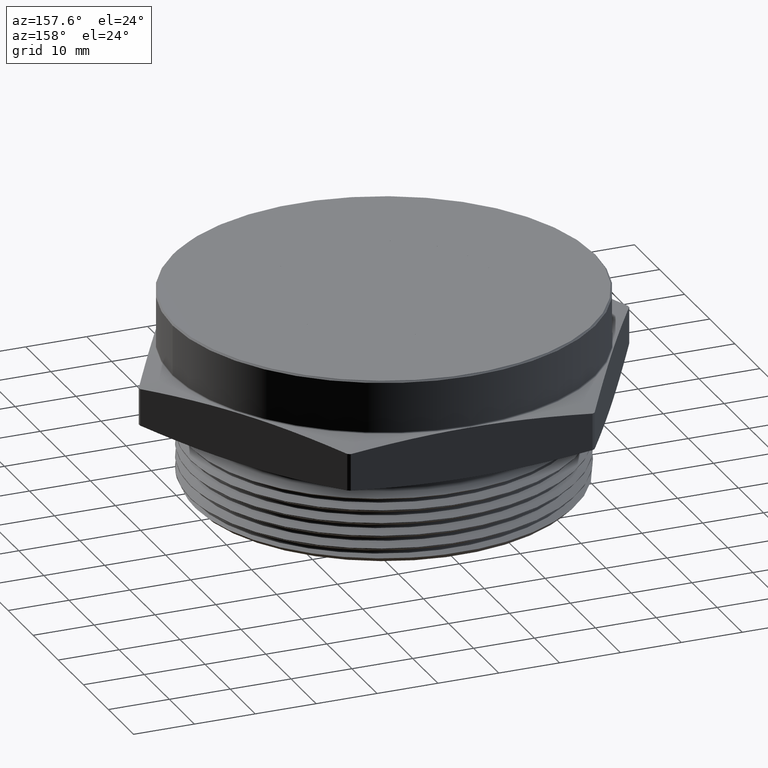
[diagram: clean part render]
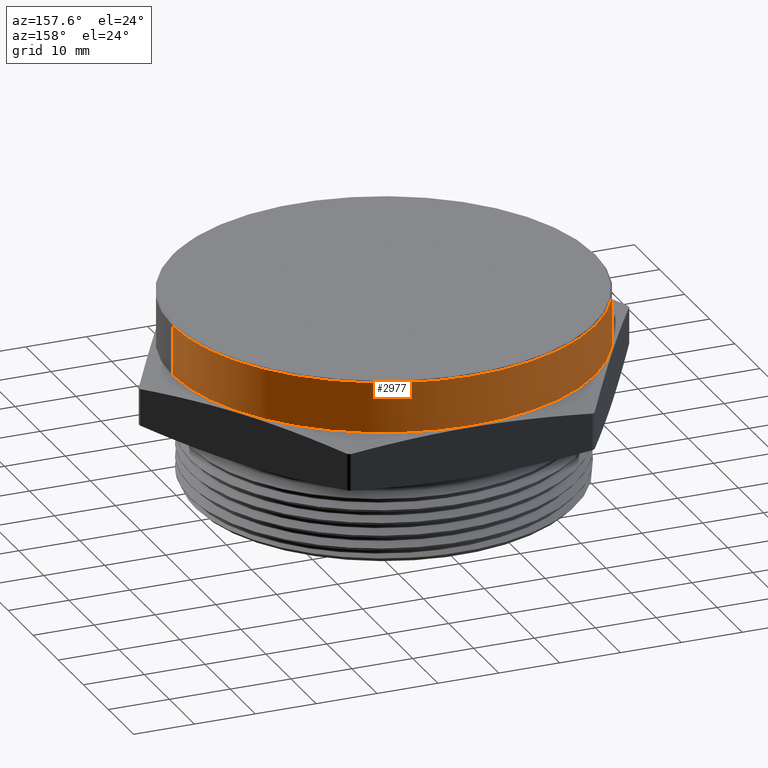
[diagram: same view with one face highlighted and labeled with its STEP entity id]
A machine part, auxiliary view. The second image highlights one B-rep face of the part: STEP entity #2977.
In plain terms, the highlighted cylindrical surface (partial cylindrical patch) has radius 34.7345 mm, axis along (-0, -0, -1).
Its self-contained STEP definition (entity closure, byte-faithful):
#41 = VERTEX_POINT ( 'NONE', #3315 ) ;
#46 = VERTEX_POINT ( 'NONE', #3311 ) ;
#61 = VERTEX_POINT ( 'NONE', #3297 ) ;
#62 = VERTEX_POINT ( 'NONE', #3296 ) ;
#111 = ORIENTED_EDGE ( 'NONE', *, *, #2746, .F. ) ;
#186 = CARTESIAN_POINT ( 'NONE',  ( 0.0000000000000000000, 0.0000000000000000000, 0.6600000000000017000 ) ) ;
#275 = EDGE_LOOP ( 'NONE', ( #2704, #2705, #2706, #111 ) ) ;
#361 = LINE ( 'NONE', #2519, #362 ) ;
#362 = VECTOR ( 'NONE', #2518, 39.37007874015748100 ) ;
#368 = CIRCLE ( 'NONE', #2869, 1.367500000000000200 ) ;
#371 = LINE ( 'NONE', #3334, #375 ) ;
#374 = CIRCLE ( 'NONE', #2870, 1.367500000000000200 ) ;
#375 = VECTOR ( 'NONE', #3335, 39.37007874015748100 ) ;
#527 = FACE_OUTER_BOUND ( 'NONE', #275, .T. ) ;
#530 = CYLINDRICAL_SURFACE ( 'NONE', #1926, 1.367500000000000200 ) ;
#1791 = DIRECTION ( 'NONE',  ( -0.0000000000000000000, -0.0000000000000000000, -1.000000000000000000 ) ) ;
#1792 = DIRECTION ( 'NONE',  ( -1.000000000000000000, 0.0000000000000000000, 0.0000000000000000000 ) ) ;
#1795 = CARTESIAN_POINT ( 'NONE',  ( 0.0000000000000000000, 0.0000000000000000000, 0.6699999999999999300 ) ) ;
#1926 = AXIS2_PLACEMENT_3D ( 'NONE', #1795, #1791, #1792 ) ;
#1954 = DIRECTION ( 'NONE',  ( 0.0000000000000000000, 0.0000000000000000000, -1.000000000000000000 ) ) ;
#1955 = DIRECTION ( 'NONE',  ( 1.000000000000000000, 0.0000000000000000000, 0.0000000000000000000 ) ) ;
#1960 = CARTESIAN_POINT ( 'NONE',  ( 0.0000000000000000000, 0.0000000000000000000, 0.3364782722655602600 ) ) ;
#1961 = DIRECTION ( 'NONE',  ( 6.123233995736748800E-017, 0.0000000000000000000, 1.000000000000000000 ) ) ;
#1962 = DIRECTION ( 'NONE',  ( 1.000000000000000000, 0.0000000000000000000, -4.994237648380736700E-017 ) ) ;
#2518 = DIRECTION ( 'NONE',  ( -0.0000000000000000000, -0.0000000000000000000, -1.000000000000000000 ) ) ;
#2519 = CARTESIAN_POINT ( 'NONE',  ( -1.367500000000000200, 0.0000000000000000000, 0.6699999999999999300 ) ) ;
#2704 = ORIENTED_EDGE ( 'NONE', *, *, #2755, .T. ) ;
#2705 = ORIENTED_EDGE ( 'NONE', *, *, #2757, .T. ) ;
#2706 = ORIENTED_EDGE ( 'NONE', *, *, #2758, .T. ) ;
#2746 = EDGE_CURVE ( 'NONE', #61, #46, #361, .T. ) ;
#2755 = EDGE_CURVE ( 'NONE', #61, #62, #368, .T. ) ;
#2757 = EDGE_CURVE ( 'NONE', #62, #41, #371, .T. ) ;
#2758 = EDGE_CURVE ( 'NONE', #41, #46, #374, .T. ) ;
#2869 = AXIS2_PLACEMENT_3D ( 'NONE', #186, #1954, #1955 ) ;
#2870 = AXIS2_PLACEMENT_3D ( 'NONE', #1960, #1961, #1962 ) ;
#2977 = ADVANCED_FACE ( 'NONE', ( #527 ), #530, .T. ) ;
#3296 = CARTESIAN_POINT ( 'NONE',  ( 1.367500000000000200, 1.674704497834005700E-016, 0.6600000000000017000 ) ) ;
#3297 = CARTESIAN_POINT ( 'NONE',  ( -1.367500000000000200, 0.0000000000000000000, 0.6600000000000017000 ) ) ;
#3311 = CARTESIAN_POINT ( 'NONE',  ( -1.367500000000000200, 0.0000000000000000000, 0.3364782722655603200 ) ) ;
#3315 = CARTESIAN_POINT ( 'NONE',  ( 1.367500000000000200, 1.674704497834005700E-016, 0.3364782722655602100 ) ) ;
#3334 = CARTESIAN_POINT ( 'NONE',  ( 1.367500000000000200, 1.674704497834005700E-016, 0.6699999999999999300 ) ) ;
#3335 = DIRECTION ( 'NONE',  ( -0.0000000000000000000, -0.0000000000000000000, -1.000000000000000000 ) ) ;